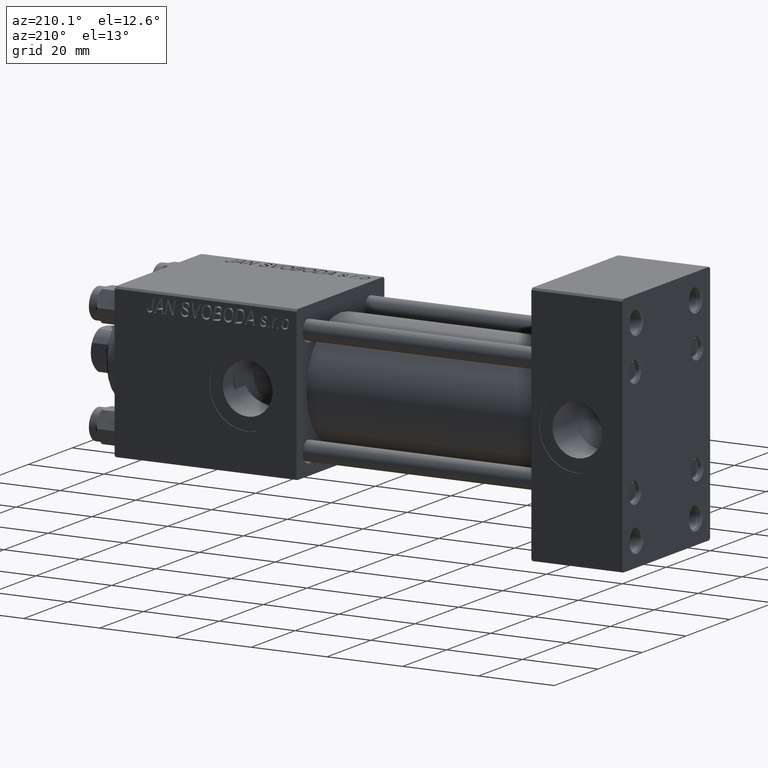
[diagram: clean part render]
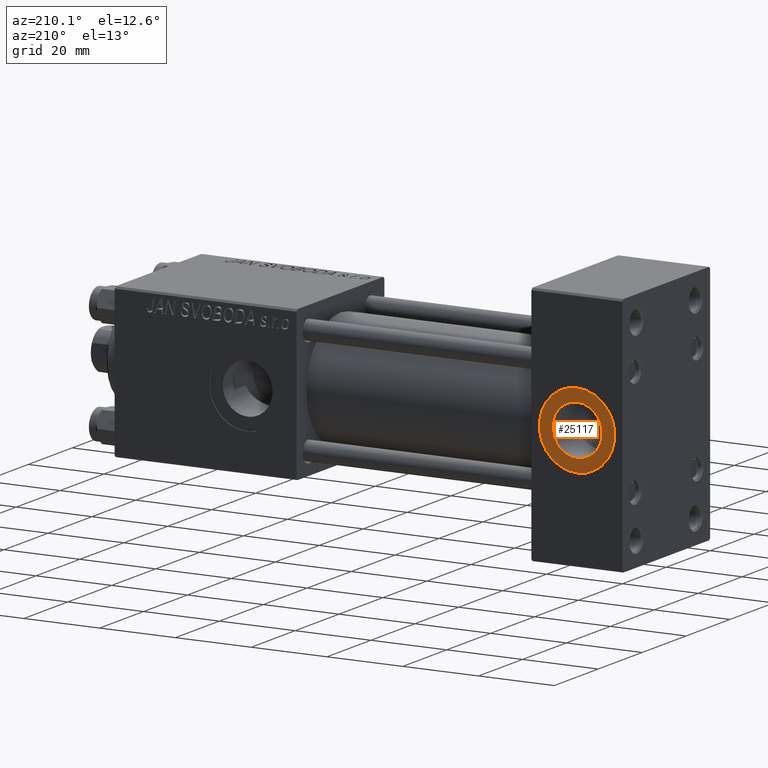
[diagram: same view with one face highlighted and labeled with its STEP entity id]
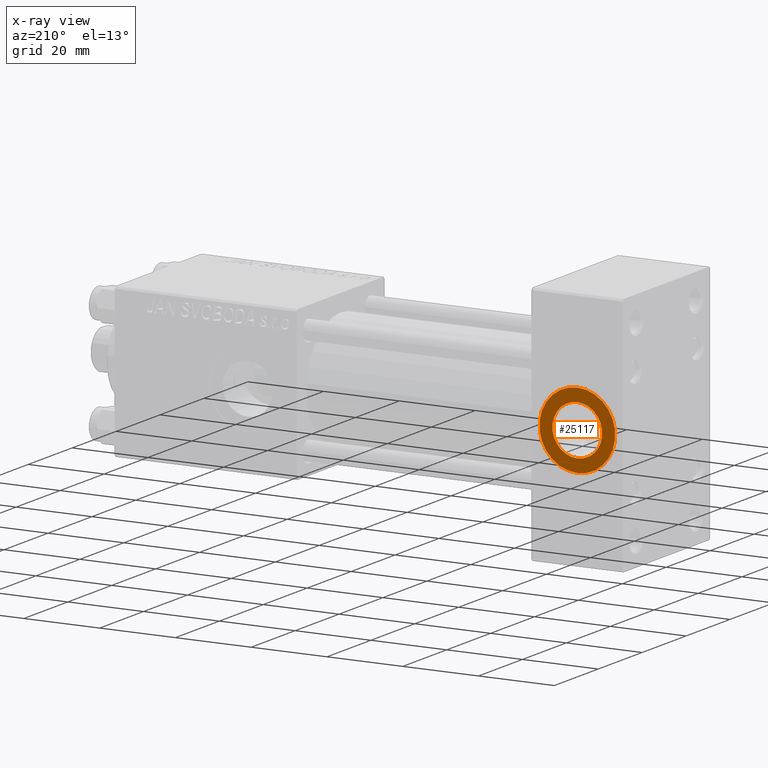
[diagram: x-ray of the same camera — body ghosted, the highlighted face saturated]
A machine part, auxiliary view. The second image highlights one B-rep face of the part: STEP entity #25117.
The next image is the same camera in x-ray: the body ghosted, the highlighted face saturated — about 0% of this face is hidden behind the body in this view.
In plain terms, the highlighted planar face has unit normal (0, 1, 0).
Its self-contained STEP definition (entity closure, byte-faithful):
#1380 = ORIENTED_EDGE ( 'NONE', *, *, #34783, .F. ) ;
#2231 = DIRECTION ( 'NONE',  ( 0.000000000000000000, 0.000000000000000000, 1.000000000000000000 ) ) ;
#2941 = CIRCLE ( 'NONE', #12585, 6.579999999999998295 ) ;
#6015 = CARTESIAN_POINT ( 'NONE',  ( 12.00000000000000000, 19.79999999999999716, 0.000000000000000000 ) ) ;
#6067 = AXIS2_PLACEMENT_3D ( 'NONE', #7730, #38539, #23103 ) ;
#6618 = DIRECTION ( 'NONE',  ( 0.000000000000000000, 1.000000000000000000, 0.000000000000000000 ) ) ;
#6764 = CARTESIAN_POINT ( 'NONE',  ( 12.00000000000000000, 19.79999999999999716, 0.000000000000000000 ) ) ;
#6940 = CARTESIAN_POINT ( 'NONE',  ( 12.00000000000000000, 19.79999999999999716, 6.579999999999998295 ) ) ;
#7265 = AXIS2_PLACEMENT_3D ( 'NONE', #6015, #13579, #2231 ) ;
#7730 = CARTESIAN_POINT ( 'NONE',  ( 12.00000000000000000, 19.79999999999999716, 0.000000000000000000 ) ) ;
#9237 = EDGE_CURVE ( 'NONE', #39283, #32603, #40857, .T. ) ;
#12585 = AXIS2_PLACEMENT_3D ( 'NONE', #6764, #30225, #14082 ) ;
#13579 = DIRECTION ( 'NONE',  ( 0.000000000000000000, 1.000000000000000000, 0.000000000000000000 ) ) ;
#14082 = DIRECTION ( 'NONE',  ( 0.000000000000000000, 0.000000000000000000, 1.000000000000000000 ) ) ;
#14894 = EDGE_LOOP ( 'NONE', ( #1380, #44856 ) ) ;
#18353 = AXIS2_PLACEMENT_3D ( 'NONE', #38969, #46057, #46560 ) ;
#19387 = CARTESIAN_POINT ( 'NONE',  ( 12.00000000000000000, 19.79999999999999716, 10.00000000000000000 ) ) ;
#21979 = DIRECTION ( 'NONE',  ( 0.000000000000000000, -0.000000000000000000, 1.000000000000000000 ) ) ;
#22376 = VERTEX_POINT ( 'NONE', #6940 ) ;
#22474 = FACE_BOUND ( 'NONE', #14894, .T. ) ;
#23103 = DIRECTION ( 'NONE',  ( 0.000000000000000000, 0.000000000000000000, 1.000000000000000000 ) ) ;
#25117 = ADVANCED_FACE ( 'NONE', ( #22474, #45002 ), #33879, .T. ) ;
#25981 = EDGE_CURVE ( 'NONE', #32603, #39283, #33700, .T. ) ;
#26286 = CARTESIAN_POINT ( 'NONE',  ( 12.00000000000000000, 19.79999999999999716, 0.000000000000000000 ) ) ;
#27994 = AXIS2_PLACEMENT_3D ( 'NONE', #26286, #6618, #21979 ) ;
#30225 = DIRECTION ( 'NONE',  ( 0.000000000000000000, 1.000000000000000000, 0.000000000000000000 ) ) ;
#31756 = ORIENTED_EDGE ( 'NONE', *, *, #9237, .T. ) ;
#32603 = VERTEX_POINT ( 'NONE', #19387 ) ;
#33700 = CIRCLE ( 'NONE', #18353, 10.00000000000000000 ) ;
#33879 = PLANE ( 'NONE',  #27994 ) ;
#34040 = VERTEX_POINT ( 'NONE', #36682 ) ;
#34629 = CIRCLE ( 'NONE', #7265, 6.579999999999998295 ) ;
#34783 = EDGE_CURVE ( 'NONE', #22376, #34040, #34629, .T. ) ;
#36682 = CARTESIAN_POINT ( 'NONE',  ( 12.00000000000000000, 19.79999999999999716, -6.579999999999998295 ) ) ;
#38539 = DIRECTION ( 'NONE',  ( 0.000000000000000000, 1.000000000000000000, 0.000000000000000000 ) ) ;
#38969 = CARTESIAN_POINT ( 'NONE',  ( 12.00000000000000000, 19.79999999999999716, 0.000000000000000000 ) ) ;
#39283 = VERTEX_POINT ( 'NONE', #47107 ) ;
#40857 = CIRCLE ( 'NONE', #6067, 10.00000000000000000 ) ;
#43404 = EDGE_LOOP ( 'NONE', ( #49394, #31756 ) ) ;
#44856 = ORIENTED_EDGE ( 'NONE', *, *, #47686, .F. ) ;
#45002 = FACE_OUTER_BOUND ( 'NONE', #43404, .T. ) ;
#46057 = DIRECTION ( 'NONE',  ( 0.000000000000000000, 1.000000000000000000, 0.000000000000000000 ) ) ;
#46560 = DIRECTION ( 'NONE',  ( 0.000000000000000000, 0.000000000000000000, 1.000000000000000000 ) ) ;
#47107 = CARTESIAN_POINT ( 'NONE',  ( 12.00000000000000178, 19.79999999999999716, -10.00000000000000000 ) ) ;
#47686 = EDGE_CURVE ( 'NONE', #34040, #22376, #2941, .T. ) ;
#49394 = ORIENTED_EDGE ( 'NONE', *, *, #25981, .T. ) ;